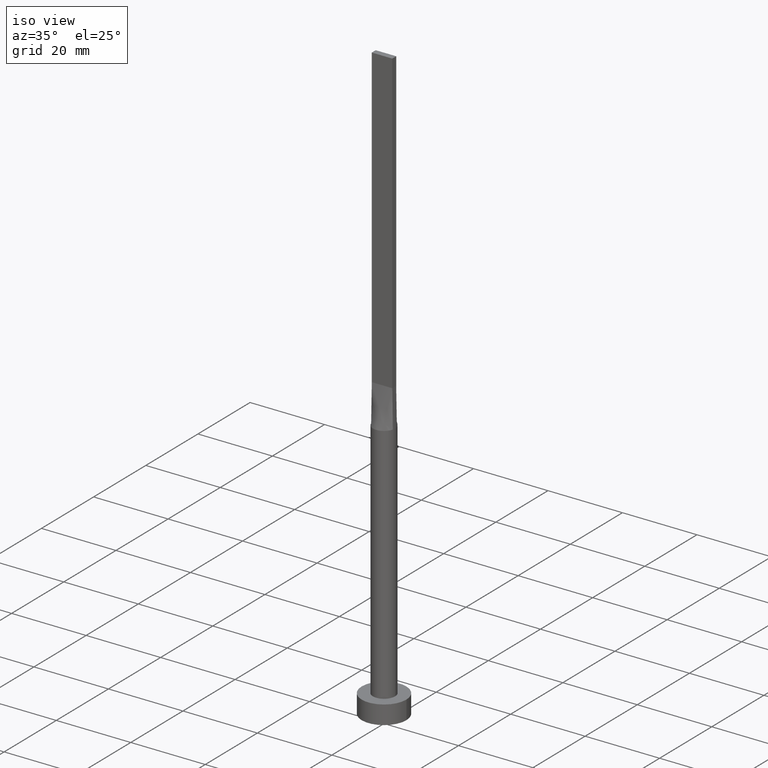
[diagram: clean part render]
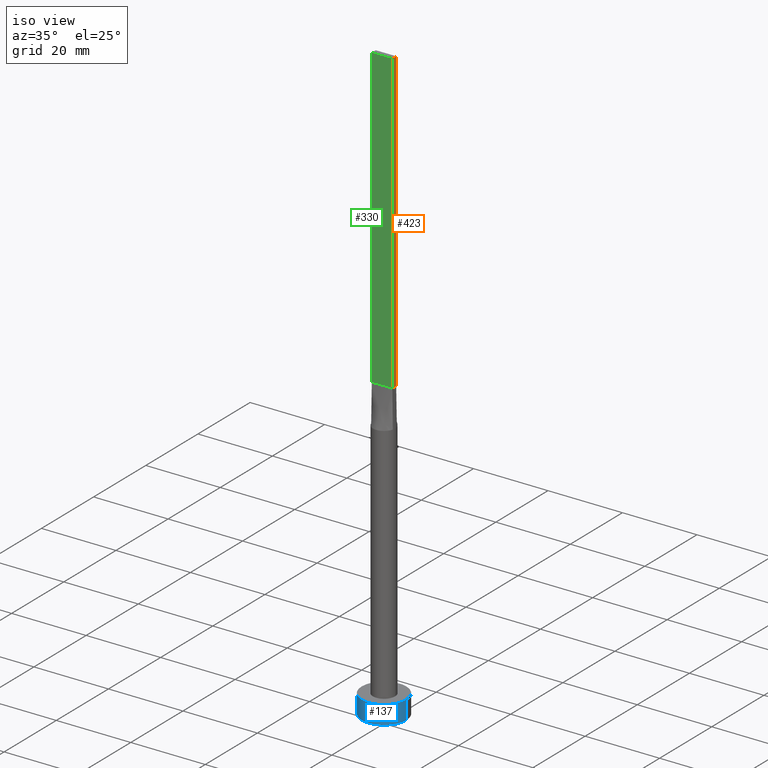
[diagram: same view with three faces highlighted in distinct colors, each labeled with its STEP entity id]
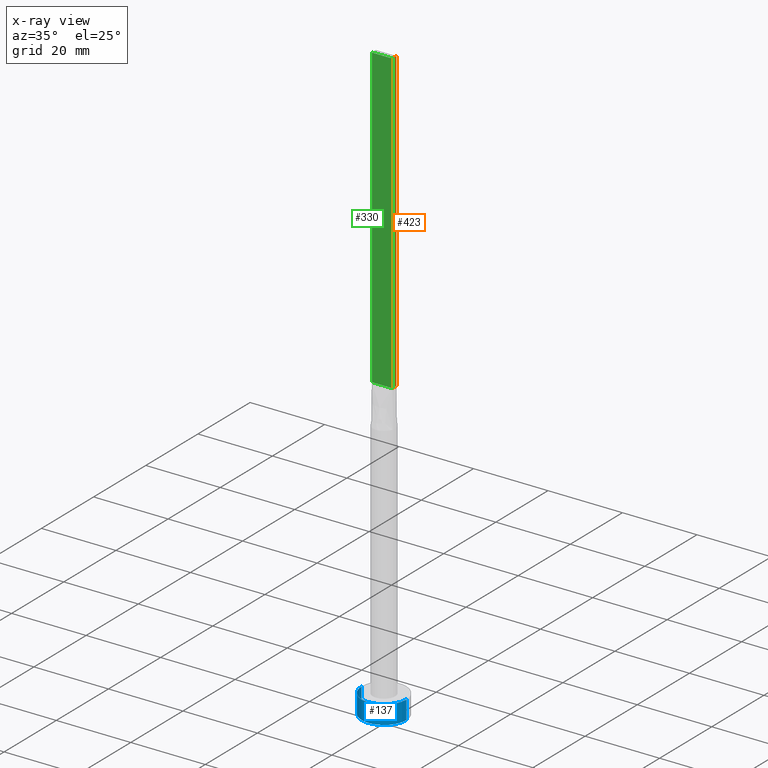
[diagram: x-ray of the same camera — body ghosted, the three highlighted faces saturated]
A machine part, iso view with three faces highlighted in distinct colors.
The next image is the same camera in x-ray (body ghosted, the three faces saturated) — at least one of them is partly hidden behind the body in this view.
Their STEP definitions:

[orange] entity #423 — the highlighted planar face has unit normal (-1, 0, 0).
#29 = LINE ( 'NONE', #336, #94 ) ;
#49 = CARTESIAN_POINT ( 'NONE',  ( 2.750000000000000000, -0.7499999999999997780, 160.0000000000000000 ) ) ;
#63 = VERTEX_POINT ( 'NONE', #522 ) ;
#64 = VECTOR ( 'NONE', #76, 1000.000000000000000 ) ;
#67 = LINE ( 'NONE', #112, #64 ) ;
#76 = DIRECTION ( 'NONE',  ( 0.000000000000000000, 1.000000000000000000, 0.000000000000000000 ) ) ;
#94 = VECTOR ( 'NONE', #191, 1000.000000000000000 ) ;
#112 = CARTESIAN_POINT ( 'NONE',  ( 2.750000000000000000, -0.7499999999999997780, 160.0000000000000000 ) ) ;
#139 = AXIS2_PLACEMENT_3D ( 'NONE', #335, #435, #189 ) ;
#159 = EDGE_CURVE ( 'NONE', #505, #501, #503, .T. ) ;
#167 = EDGE_LOOP ( 'NONE', ( #400, #268, #406, #417 ) ) ;
#189 = DIRECTION ( 'NONE',  ( 0.000000000000000000, 0.000000000000000000, 1.000000000000000000 ) ) ;
#191 = DIRECTION ( 'NONE',  ( -0.000000000000000000, -0.000000000000000000, -1.000000000000000000 ) ) ;
#239 = CARTESIAN_POINT ( 'NONE',  ( 2.750000000000000000, -0.7499999999999997780, 160.0000000000000000 ) ) ;
#240 = VECTOR ( 'NONE', #524, 1000.000000000000000 ) ;
#262 = DIRECTION ( 'NONE',  ( -0.000000000000000000, -0.000000000000000000, -1.000000000000000000 ) ) ;
#268 = ORIENTED_EDGE ( 'NONE', *, *, #375, .F. ) ;
#291 = PLANE ( 'NONE',  #139 ) ;
#297 = FACE_OUTER_BOUND ( 'NONE', #167, .T. ) ;
#324 = VECTOR ( 'NONE', #262, 1000.000000000000000 ) ;
#333 = LINE ( 'NONE', #528, #240 ) ;
#335 = CARTESIAN_POINT ( 'NONE',  ( 2.750000000000000000, -0.7499999999999997780, 160.0000000000000000 ) ) ;
#336 = CARTESIAN_POINT ( 'NONE',  ( 2.750000000000000000, 0.7500000000000002220, 160.0000000000000000 ) ) ;
#375 = EDGE_CURVE ( 'NONE', #486, #63, #29, .T. ) ;
#379 = EDGE_CURVE ( 'NONE', #501, #63, #333, .T. ) ;
#388 = CARTESIAN_POINT ( 'NONE',  ( 2.750000000000000000, -0.7499999999999997780, 80.00000000000000000 ) ) ;
#400 = ORIENTED_EDGE ( 'NONE', *, *, #379, .T. ) ;
#406 = ORIENTED_EDGE ( 'NONE', *, *, #460, .F. ) ;
#417 = ORIENTED_EDGE ( 'NONE', *, *, #159, .T. ) ;
#419 = CARTESIAN_POINT ( 'NONE',  ( 2.750000000000000000, 0.7500000000000002220, 160.0000000000000000 ) ) ;
#423 = ADVANCED_FACE ( 'NONE', ( #297 ), #291, .F. ) ;
#435 = DIRECTION ( 'NONE',  ( -1.000000000000000000, 0.000000000000000000, 0.000000000000000000 ) ) ;
#460 = EDGE_CURVE ( 'NONE', #505, #486, #67, .T. ) ;
#486 = VERTEX_POINT ( 'NONE', #419 ) ;
#501 = VERTEX_POINT ( 'NONE', #388 ) ;
#503 = LINE ( 'NONE', #49, #324 ) ;
#505 = VERTEX_POINT ( 'NONE', #239 ) ;
#522 = CARTESIAN_POINT ( 'NONE',  ( 2.750000000000000000, 0.7500000000000002220, 80.00000000000000000 ) ) ;
#524 = DIRECTION ( 'NONE',  ( -0.000000000000000000, 1.000000000000000000, -0.000000000000000000 ) ) ;
#528 = CARTESIAN_POINT ( 'NONE',  ( 2.750000000000000000, 0.7500000000000002220, 80.00000000000000000 ) ) ;

[blue] entity #137 — the highlighted cylindrical surface (edge-blend (fillet) strip) has radius 6 mm, axis along (-0, -0, -1).
#2 = DIRECTION ( 'NONE',  ( 0.000000000000000000, 0.000000000000000000, 1.000000000000000000 ) ) ;
#14 = EDGE_CURVE ( 'NONE', #490, #289, #432, .T. ) ;
#18 = DIRECTION ( 'NONE',  ( -0.000000000000000000, -0.000000000000000000, -1.000000000000000000 ) ) ;
#19 = CIRCLE ( 'NONE', #358, 6.000000000000000888 ) ;
#21 = VERTEX_POINT ( 'NONE', #90 ) ;
#35 = EDGE_CURVE ( 'NONE', #56, #21, #19, .T. ) ;
#42 = CARTESIAN_POINT ( 'NONE',  ( -6.000000000000000888, 0.000000000000000000, 5.000000000000000000 ) ) ;
#56 = VERTEX_POINT ( 'NONE', #579 ) ;
#68 = ORIENTED_EDGE ( 'NONE', *, *, #225, .T. ) ;
#89 = EDGE_CURVE ( 'NONE', #289, #21, #170, .T. ) ;
#90 = CARTESIAN_POINT ( 'NONE',  ( 6.000000000000000888, 7.347880794884120722E-16, 0.000000000000000000 ) ) ;
#130 = CARTESIAN_POINT ( 'NONE',  ( 0.000000000000000000, 0.000000000000000000, 5.000000000000000000 ) ) ;
#137 = ADVANCED_FACE ( 'NONE', ( #231 ), #427, .T. ) ;
#156 = CARTESIAN_POINT ( 'NONE',  ( 6.000000000000000888, 7.347880794884120722E-16, 5.000000000000000000 ) ) ;
#170 = LINE ( 'NONE', #441, #198 ) ;
#176 = DIRECTION ( 'NONE',  ( 1.000000000000000000, 0.000000000000000000, 0.000000000000000000 ) ) ;
#179 = DIRECTION ( 'NONE',  ( -1.000000000000000000, 0.000000000000000000, 0.000000000000000000 ) ) ;
#197 = AXIS2_PLACEMENT_3D ( 'NONE', #398, #548, #308 ) ;
#198 = VECTOR ( 'NONE', #359, 1000.000000000000000 ) ;
#225 = EDGE_CURVE ( 'NONE', #490, #56, #408, .T. ) ;
#231 = FACE_OUTER_BOUND ( 'NONE', #321, .T. ) ;
#232 = ORIENTED_EDGE ( 'NONE', *, *, #14, .F. ) ;
#289 = VERTEX_POINT ( 'NONE', #156 ) ;
#302 = CARTESIAN_POINT ( 'NONE',  ( 0.000000000000000000, 0.000000000000000000, 0.000000000000000000 ) ) ;
#308 = DIRECTION ( 'NONE',  ( 1.000000000000000000, 0.000000000000000000, 0.000000000000000000 ) ) ;
#321 = EDGE_LOOP ( 'NONE', ( #395, #232, #68, #482 ) ) ;
#358 = AXIS2_PLACEMENT_3D ( 'NONE', #302, #2, #176 ) ;
#359 = DIRECTION ( 'NONE',  ( -0.000000000000000000, -0.000000000000000000, -1.000000000000000000 ) ) ;
#395 = ORIENTED_EDGE ( 'NONE', *, *, #89, .F. ) ;
#398 = CARTESIAN_POINT ( 'NONE',  ( 0.000000000000000000, 0.000000000000000000, 5.000000000000000000 ) ) ;
#402 = CARTESIAN_POINT ( 'NONE',  ( -6.000000000000000888, 0.000000000000000000, 5.000000000000000000 ) ) ;
#408 = LINE ( 'NONE', #402, #473 ) ;
#427 = CYLINDRICAL_SURFACE ( 'NONE', #474, 6.000000000000000888 ) ;
#432 = CIRCLE ( 'NONE', #197, 6.000000000000000888 ) ;
#441 = CARTESIAN_POINT ( 'NONE',  ( 6.000000000000000888, 7.347880794884120722E-16, 5.000000000000000000 ) ) ;
#473 = VECTOR ( 'NONE', #18, 1000.000000000000000 ) ;
#474 = AXIS2_PLACEMENT_3D ( 'NONE', #130, #545, #179 ) ;
#482 = ORIENTED_EDGE ( 'NONE', *, *, #35, .T. ) ;
#490 = VERTEX_POINT ( 'NONE', #42 ) ;
#545 = DIRECTION ( 'NONE',  ( -0.000000000000000000, -0.000000000000000000, -1.000000000000000000 ) ) ;
#548 = DIRECTION ( 'NONE',  ( 0.000000000000000000, 0.000000000000000000, 1.000000000000000000 ) ) ;
#579 = CARTESIAN_POINT ( 'NONE',  ( -6.000000000000000888, 0.000000000000000000, 0.000000000000000000 ) ) ;

[green] entity #330 — the highlighted planar face has unit normal (0, 1, -0).
#23 = VECTOR ( 'NONE', #492, 1000.000000000000000 ) ;
#49 = CARTESIAN_POINT ( 'NONE',  ( 2.750000000000000000, -0.7499999999999997780, 160.0000000000000000 ) ) ;
#124 = LINE ( 'NONE', #298, #23 ) ;
#128 = AXIS2_PLACEMENT_3D ( 'NONE', #445, #498, #397 ) ;
#159 = EDGE_CURVE ( 'NONE', #505, #501, #503, .T. ) ;
#161 = PLANE ( 'NONE',  #128 ) ;
#220 = ORIENTED_EDGE ( 'NONE', *, *, #322, .T. ) ;
#233 = CARTESIAN_POINT ( 'NONE',  ( -2.750000000000000000, -0.7499999999999994449, 160.0000000000000000 ) ) ;
#239 = CARTESIAN_POINT ( 'NONE',  ( 2.750000000000000000, -0.7499999999999997780, 160.0000000000000000 ) ) ;
#260 = VERTEX_POINT ( 'NONE', #315 ) ;
#262 = DIRECTION ( 'NONE',  ( -0.000000000000000000, -0.000000000000000000, -1.000000000000000000 ) ) ;
#295 = ORIENTED_EDGE ( 'NONE', *, *, #487, .F. ) ;
#298 = CARTESIAN_POINT ( 'NONE',  ( -2.750000000000000000, -0.7499999999999994449, 160.0000000000000000 ) ) ;
#304 = DIRECTION ( 'NONE',  ( 1.000000000000000000, -5.913830031739115543E-17, 0.000000000000000000 ) ) ;
#315 = CARTESIAN_POINT ( 'NONE',  ( -2.750000000000000000, -0.7499999999999994449, 160.0000000000000000 ) ) ;
#316 = ORIENTED_EDGE ( 'NONE', *, *, #318, .T. ) ;
#318 = EDGE_CURVE ( 'NONE', #260, #424, #124, .T. ) ;
#322 = EDGE_CURVE ( 'NONE', #424, #501, #352, .T. ) ;
#324 = VECTOR ( 'NONE', #262, 1000.000000000000000 ) ;
#326 = VECTOR ( 'NONE', #304, 1000.000000000000000 ) ;
#330 = ADVANCED_FACE ( 'NONE', ( #377 ), #161, .F. ) ;
#352 = LINE ( 'NONE', #446, #326 ) ;
#363 = EDGE_LOOP ( 'NONE', ( #220, #512, #295, #316 ) ) ;
#377 = FACE_OUTER_BOUND ( 'NONE', #363, .T. ) ;
#384 = DIRECTION ( 'NONE',  ( 1.000000000000000000, -5.913830031739115543E-17, 0.000000000000000000 ) ) ;
#388 = CARTESIAN_POINT ( 'NONE',  ( 2.750000000000000000, -0.7499999999999997780, 80.00000000000000000 ) ) ;
#397 = DIRECTION ( 'NONE',  ( -1.000000000000000000, 5.913830031739115543E-17, 0.000000000000000000 ) ) ;
#424 = VERTEX_POINT ( 'NONE', #489 ) ;
#437 = LINE ( 'NONE', #233, #564 ) ;
#445 = CARTESIAN_POINT ( 'NONE',  ( -2.750000000000000000, -0.7499999999999994449, 160.0000000000000000 ) ) ;
#446 = CARTESIAN_POINT ( 'NONE',  ( -2.750000000000000000, -0.7499999999999994449, 80.00000000000000000 ) ) ;
#487 = EDGE_CURVE ( 'NONE', #260, #505, #437, .T. ) ;
#489 = CARTESIAN_POINT ( 'NONE',  ( -2.750000000000000000, -0.7499999999999994449, 80.00000000000000000 ) ) ;
#492 = DIRECTION ( 'NONE',  ( -0.000000000000000000, -0.000000000000000000, -1.000000000000000000 ) ) ;
#498 = DIRECTION ( 'NONE',  ( 5.913830031739115543E-17, 1.000000000000000000, -0.000000000000000000 ) ) ;
#501 = VERTEX_POINT ( 'NONE', #388 ) ;
#503 = LINE ( 'NONE', #49, #324 ) ;
#505 = VERTEX_POINT ( 'NONE', #239 ) ;
#512 = ORIENTED_EDGE ( 'NONE', *, *, #159, .F. ) ;
#564 = VECTOR ( 'NONE', #384, 1000.000000000000000 ) ;